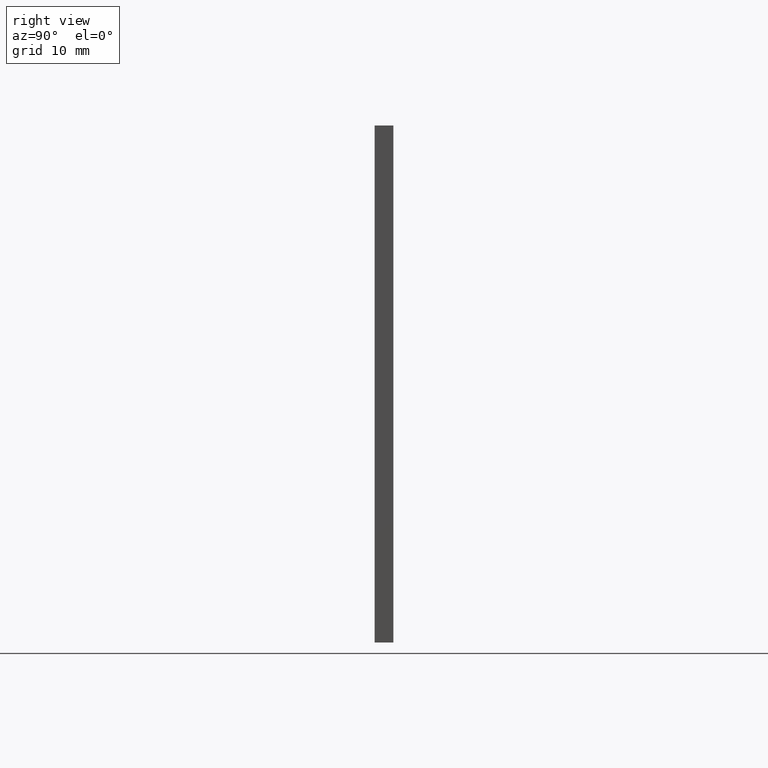
[diagram: clean part render]
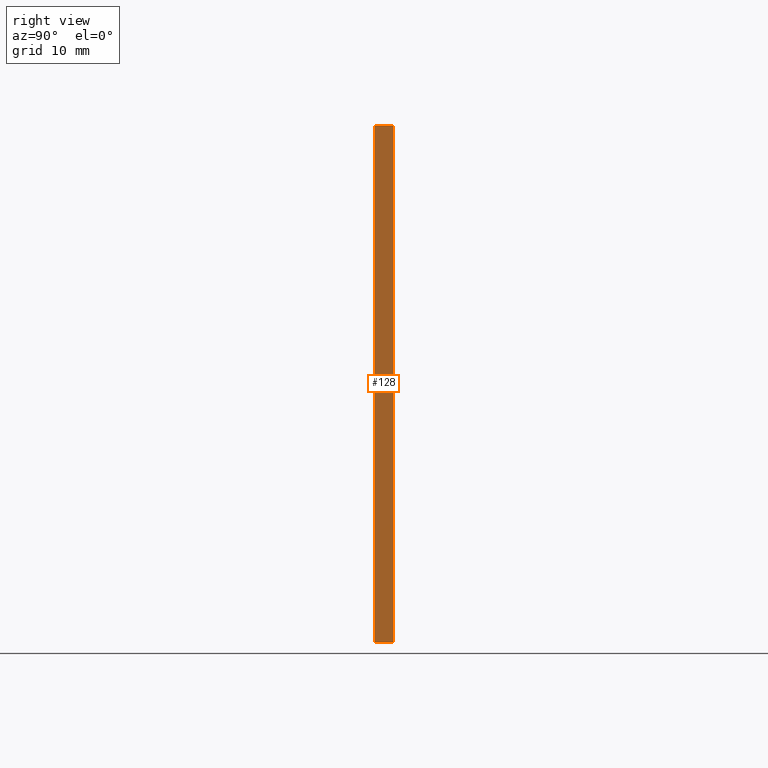
[diagram: same view with one face highlighted and labeled with its STEP entity id]
A machine part, right view. The second image highlights one B-rep face of the part: STEP entity #128.
In plain terms, the highlighted planar face has unit normal (-1, 0, 0).
Its self-contained STEP definition (entity closure, byte-faithful):
#3 = DIRECTION ( 'NONE',  ( 0.0000000000000000000, 0.0000000000000000000, -1.000000000000000000 ) ) ;
#5 = DIRECTION ( 'NONE',  ( -0.0000000000000000000, -1.000000000000000000, -0.0000000000000000000 ) ) ;
#7 = FACE_OUTER_BOUND ( 'NONE', #15, .T. ) ;
#15 = EDGE_LOOP ( 'NONE', ( #134, #70, #195, #130 ) ) ;
#17 = PLANE ( 'NONE',  #141 ) ;
#18 = CARTESIAN_POINT ( 'NONE',  ( 25.00000000000001100, 0.0000000000000000000, 24.99999999999999600 ) ) ;
#25 = CARTESIAN_POINT ( 'NONE',  ( 25.00000000000001100, 1.820000000000000100, 24.99999999999999600 ) ) ;
#26 = CARTESIAN_POINT ( 'NONE',  ( 25.00000000000001100, 1.820000000000000100, 24.99999999999999600 ) ) ;
#31 = LINE ( 'NONE', #194, #50 ) ;
#34 = CARTESIAN_POINT ( 'NONE',  ( 25.00000000000001100, 1.820000000000000100, -25.00000000000000400 ) ) ;
#36 = CARTESIAN_POINT ( 'NONE',  ( 25.00000000000001100, 1.820000000000000100, 24.99999999999999600 ) ) ;
#37 = DIRECTION ( 'NONE',  ( -0.0000000000000000000, -1.000000000000000000, -0.0000000000000000000 ) ) ;
#47 = EDGE_CURVE ( 'NONE', #74, #145, #94, .T. ) ;
#50 = VECTOR ( 'NONE', #37, 1000.000000000000000 ) ;
#56 = DIRECTION ( 'NONE',  ( 0.0000000000000000000, 0.0000000000000000000, -1.000000000000000000 ) ) ;
#64 = CARTESIAN_POINT ( 'NONE',  ( 25.00000000000001100, 0.0000000000000000000, 24.99999999999999600 ) ) ;
#66 = CARTESIAN_POINT ( 'NONE',  ( 25.00000000000001100, 1.820000000000000100, -25.00000000000000400 ) ) ;
#70 = ORIENTED_EDGE ( 'NONE', *, *, #160, .F. ) ;
#74 = VERTEX_POINT ( 'NONE', #25 ) ;
#84 = VECTOR ( 'NONE', #3, 1000.000000000000000 ) ;
#94 = LINE ( 'NONE', #26, #186 ) ;
#102 = LINE ( 'NONE', #34, #175 ) ;
#121 = DIRECTION ( 'NONE',  ( 0.0000000000000000000, 0.0000000000000000000, 1.000000000000000000 ) ) ;
#128 = ADVANCED_FACE ( 'NONE', ( #7 ), #17, .F. ) ;
#130 = ORIENTED_EDGE ( 'NONE', *, *, #170, .T. ) ;
#134 = ORIENTED_EDGE ( 'NONE', *, *, #200, .T. ) ;
#135 = CARTESIAN_POINT ( 'NONE',  ( 25.00000000000001100, 0.0000000000000000000, -25.00000000000000400 ) ) ;
#137 = VERTEX_POINT ( 'NONE', #135 ) ;
#141 = AXIS2_PLACEMENT_3D ( 'NONE', #36, #182, #121 ) ;
#143 = VERTEX_POINT ( 'NONE', #18 ) ;
#145 = VERTEX_POINT ( 'NONE', #66 ) ;
#160 = EDGE_CURVE ( 'NONE', #145, #137, #102, .T. ) ;
#170 = EDGE_CURVE ( 'NONE', #74, #143, #31, .T. ) ;
#172 = LINE ( 'NONE', #64, #84 ) ;
#175 = VECTOR ( 'NONE', #5, 1000.000000000000000 ) ;
#182 = DIRECTION ( 'NONE',  ( -1.000000000000000000, 0.0000000000000000000, 0.0000000000000000000 ) ) ;
#186 = VECTOR ( 'NONE', #56, 1000.000000000000000 ) ;
#194 = CARTESIAN_POINT ( 'NONE',  ( 25.00000000000001100, 1.820000000000000100, 24.99999999999999600 ) ) ;
#195 = ORIENTED_EDGE ( 'NONE', *, *, #47, .F. ) ;
#200 = EDGE_CURVE ( 'NONE', #143, #137, #172, .T. ) ;